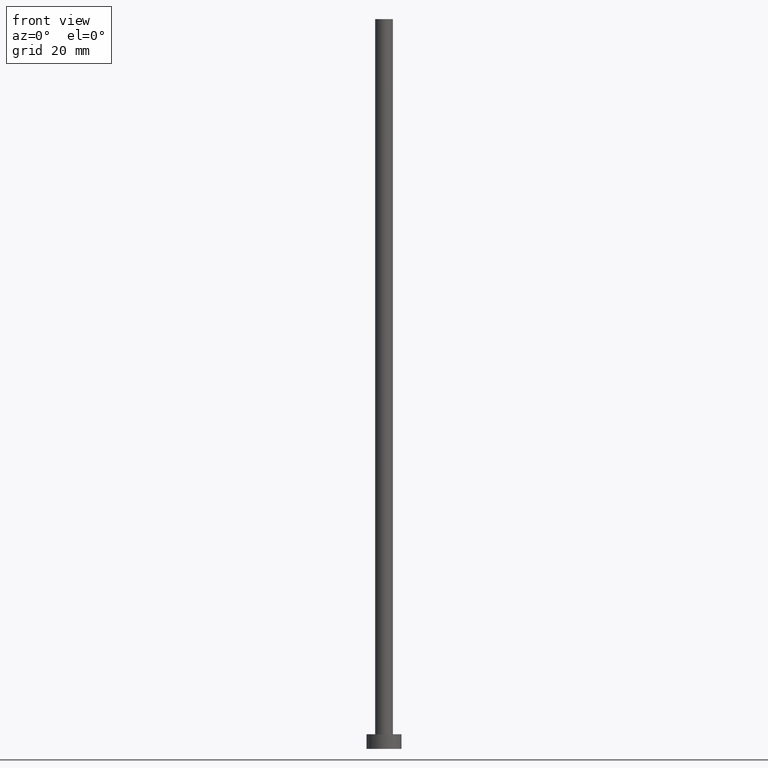
[diagram: clean part render]
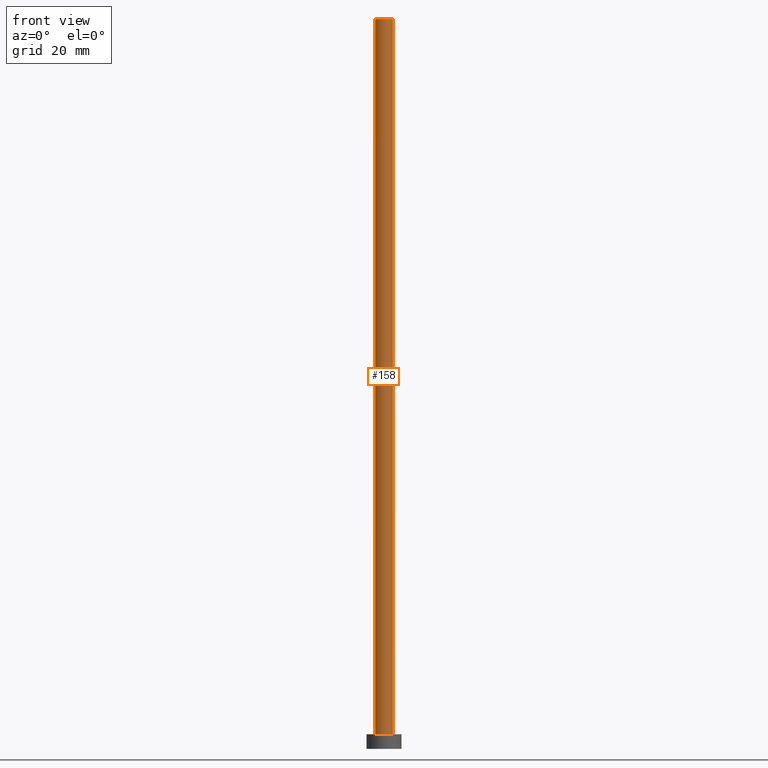
[diagram: same view with one face highlighted and labeled with its STEP entity id]
A machine part, front view. The second image highlights one B-rep face of the part: STEP entity #158.
In plain terms, the highlighted cylindrical surface (edge-blend (fillet) strip) has radius 3.05 mm, axis along (-0, -0, -1).
Its self-contained STEP definition (entity closure, byte-faithful):
#6 = EDGE_LOOP ( 'NONE', ( #236, #47, #102, #163 ) ) ;
#10 = VERTEX_POINT ( 'NONE', #61 ) ;
#27 = CARTESIAN_POINT ( 'NONE',  ( 3.049999999999999822, 3.735172737399427146E-16, 250.0000000000000000 ) ) ;
#32 = CARTESIAN_POINT ( 'NONE',  ( -3.049999999999999822, 0.000000000000000000, 250.0000000000000000 ) ) ;
#36 = EDGE_CURVE ( 'NONE', #200, #39, #133, .T. ) ;
#39 = VERTEX_POINT ( 'NONE', #167 ) ;
#47 = ORIENTED_EDGE ( 'NONE', *, *, #151, .F. ) ;
#49 = LINE ( 'NONE', #189, #109 ) ;
#61 = CARTESIAN_POINT ( 'NONE',  ( -3.049999999999999822, 0.000000000000000000, 5.000000000000000000 ) ) ;
#65 = DIRECTION ( 'NONE',  ( -0.000000000000000000, -0.000000000000000000, -1.000000000000000000 ) ) ;
#71 = CARTESIAN_POINT ( 'NONE',  ( 3.049999999999999822, 3.735172737399427146E-16, 250.0000000000000000 ) ) ;
#73 = CARTESIAN_POINT ( 'NONE',  ( 0.000000000000000000, 0.000000000000000000, 250.0000000000000000 ) ) ;
#89 = VECTOR ( 'NONE', #65, 1000.000000000000000 ) ;
#96 = DIRECTION ( 'NONE',  ( 0.000000000000000000, 0.000000000000000000, 1.000000000000000000 ) ) ;
#102 = ORIENTED_EDGE ( 'NONE', *, *, #180, .T. ) ;
#109 = VECTOR ( 'NONE', #114, 1000.000000000000000 ) ;
#114 = DIRECTION ( 'NONE',  ( -0.000000000000000000, -0.000000000000000000, -1.000000000000000000 ) ) ;
#115 = CIRCLE ( 'NONE', #217, 3.049999999999999822 ) ;
#133 = LINE ( 'NONE', #27, #89 ) ;
#134 = EDGE_CURVE ( 'NONE', #10, #39, #141, .T. ) ;
#139 = DIRECTION ( 'NONE',  ( -1.000000000000000000, 0.000000000000000000, 0.000000000000000000 ) ) ;
#141 = CIRCLE ( 'NONE', #155, 3.049999999999999822 ) ;
#150 = VERTEX_POINT ( 'NONE', #32 ) ;
#151 = EDGE_CURVE ( 'NONE', #150, #200, #115, .T. ) ;
#155 = AXIS2_PLACEMENT_3D ( 'NONE', #172, #96, #208 ) ;
#156 = DIRECTION ( 'NONE',  ( 0.000000000000000000, 0.000000000000000000, 1.000000000000000000 ) ) ;
#158 = ADVANCED_FACE ( 'NONE', ( #169 ), #248, .T. ) ;
#163 = ORIENTED_EDGE ( 'NONE', *, *, #134, .T. ) ;
#167 = CARTESIAN_POINT ( 'NONE',  ( 3.049999999999999822, 3.735172737399427146E-16, 5.000000000000000000 ) ) ;
#169 = FACE_OUTER_BOUND ( 'NONE', #6, .T. ) ;
#172 = CARTESIAN_POINT ( 'NONE',  ( 0.000000000000000000, 0.000000000000000000, 5.000000000000000000 ) ) ;
#180 = EDGE_CURVE ( 'NONE', #150, #10, #49, .T. ) ;
#189 = CARTESIAN_POINT ( 'NONE',  ( -3.049999999999999822, 0.000000000000000000, 250.0000000000000000 ) ) ;
#191 = DIRECTION ( 'NONE',  ( -0.000000000000000000, -0.000000000000000000, -1.000000000000000000 ) ) ;
#200 = VERTEX_POINT ( 'NONE', #71 ) ;
#208 = DIRECTION ( 'NONE',  ( 1.000000000000000000, 0.000000000000000000, 0.000000000000000000 ) ) ;
#215 = AXIS2_PLACEMENT_3D ( 'NONE', #227, #191, #139 ) ;
#217 = AXIS2_PLACEMENT_3D ( 'NONE', #73, #156, #231 ) ;
#227 = CARTESIAN_POINT ( 'NONE',  ( 0.000000000000000000, 0.000000000000000000, 250.0000000000000000 ) ) ;
#231 = DIRECTION ( 'NONE',  ( 1.000000000000000000, 0.000000000000000000, 0.000000000000000000 ) ) ;
#236 = ORIENTED_EDGE ( 'NONE', *, *, #36, .F. ) ;
#248 = CYLINDRICAL_SURFACE ( 'NONE', #215, 3.049999999999999822 ) ;